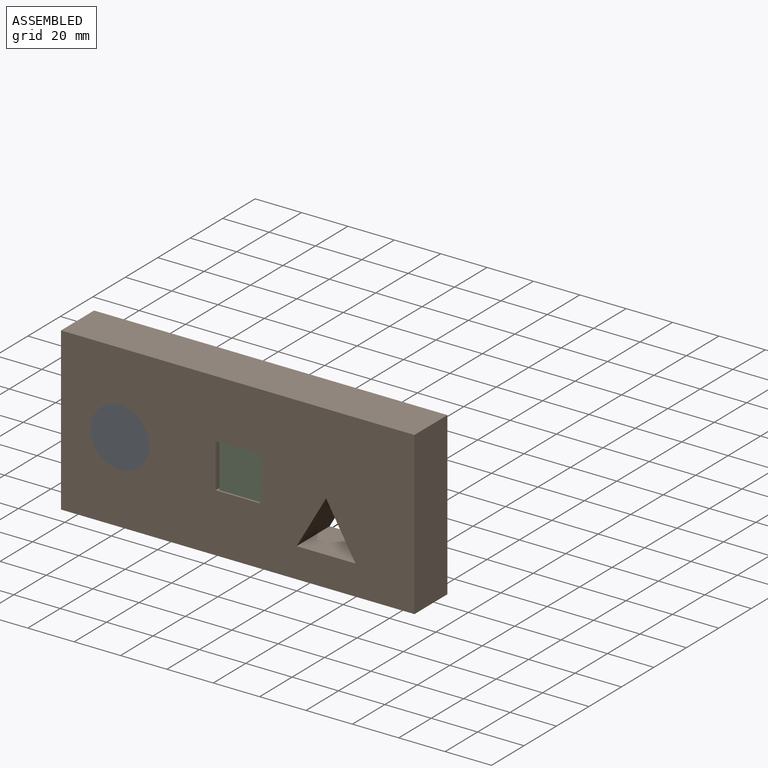
[diagram: assembled view]
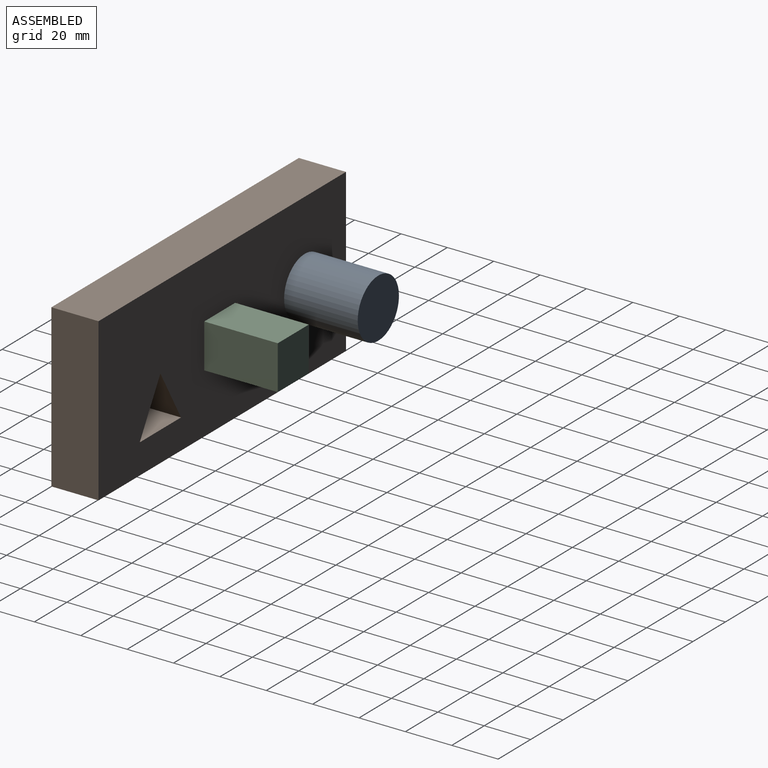
[diagram: assembled view, second angle]
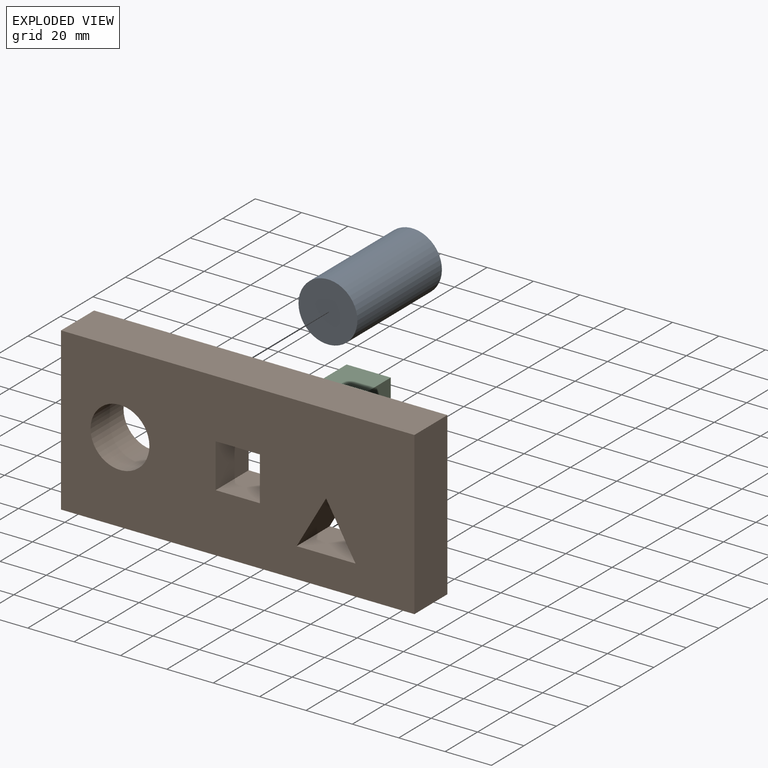
[diagram: exploded view]
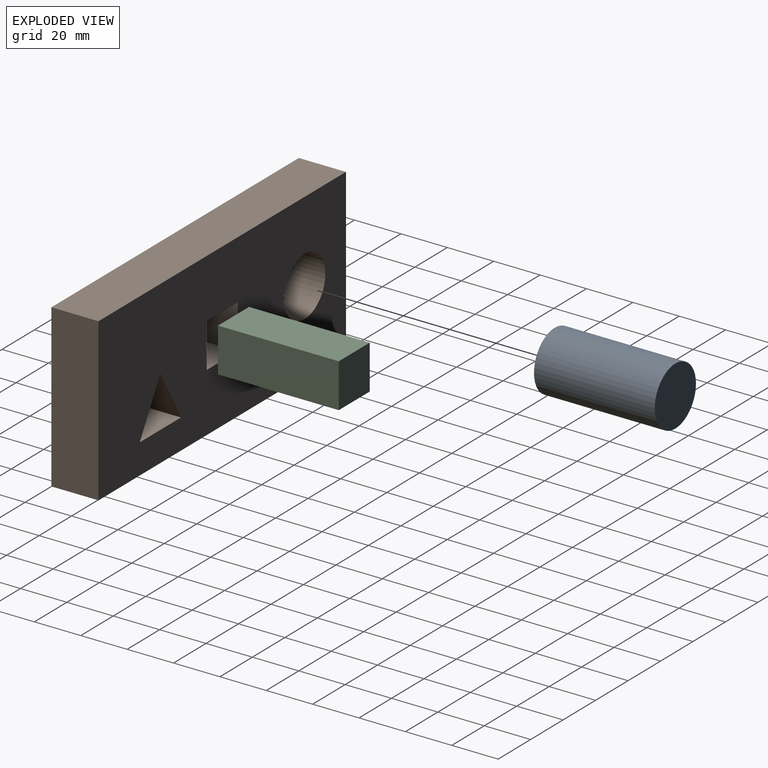
[diagram: exploded view, second angle]
ASSEMBLY  parts=3 mates=2
PART A: 3 faces, bbox 25.4x25.4x52.1 mm
  f0: cylinder r=12.7mm len=52.07mm, axis (0,0,-1), area 4155mm2, adj f1,f2
  f1: plane 25.4x25.4mm, normal (0,0,1), area 506.7mm2, adj f0
  f2: plane 25.4x25.4mm, normal (0,0,-1), area 506.7mm2, adj f0
PART B: 14 faces, bbox 152.4x20.3x69.8 mm
  f0: plane 20.32x19.05mm, normal (-1,0,0), area 387.1mm2, adj f1,f11,f12,f13
  f1: plane 20.32x19.05mm, normal (0,0,1), area 387.1mm2, adj f0,f2,f12,f13
  f2: plane 20.32x19.05mm, normal (1,0,0), area 387.1mm2, adj f1,f11,f12,f13
  f3: plane 22x20.32mm, normal (-0.87,0,-0.5), area 516.1mm2, adj f4,f8,f12,f13
  f4: plane 25.4x20.32mm, normal (0,0,1), area 516.1mm2, adj f3,f8,f12,f13
  f5: plane 152.4x20.32mm, normal (0,0,-1), area 3096.8mm2, adj f6,f9,f12,f13
  f6: plane 69.83x20.32mm, normal (1,0,0), area 1419mm2, adj f5,f7,f12,f13
  f7: plane 152.4x20.32mm, normal (0,0,1), area 3096.8mm2, adj f6,f9,f12,f13
  f8: plane 22x20.32mm, normal (0.87,0,-0.5), area 516.1mm2, adj f3,f4,f12,f13
  f9: plane 69.83x20.32mm, normal (-1,0,0), area 1419mm2, adj f5,f7,f12,f13
  f10: cylinder r=12.7mm len=25.4mm, axis (0,1,0), area 1621.5mm2, adj f12,f13
  f11: plane 20.32x19.05mm, normal (0,0,-1), area 387.1mm2, adj f0,f2,f12,f13
  f12: plane 152.4x69.83mm, normal (0,-1,0), area 9493.2mm2, adj f0,f1,f2,f3,f4,f5,f6,f7
  f13: plane 152.4x69.83mm, normal (0,1,0), area 9493.2mm2, adj f0,f1,f2,f3,f4,f5,f6,f7
PART C: 6 faces, bbox 19.1x19.1x52.1 mm
  f0: plane 52.07x19.05mm, normal (0,-1,0), area 991.9mm2, adj f1,f3,f4,f5
  f1: plane 52.07x19.05mm, normal (1,0,0), area 991.9mm2, adj f0,f2,f4,f5
  f2: plane 52.07x19.05mm, normal (0,1,0), area 991.9mm2, adj f1,f3,f4,f5
  f3: plane 52.07x19.05mm, normal (-1,0,0), area 991.9mm2, adj f0,f2,f4,f5
  f4: plane 19.05x19.05mm, normal (0,0,1), area 362.9mm2, adj f0,f1,f2,f3
  f5: plane 19.05x19.05mm, normal (0,0,-1), area 362.9mm2, adj f0,f1,f2,f3
PLACE A rot(axis=(1,0,0),90deg) t=(-15.98,15.33,23.48)mm
PLACE B t=(-15.98,-16.42,23.48)mm
PLACE C rot(axis=(-1,0,0),90deg) t=(-14.39,-36.74,23.92)mm
MATE fastened C.f5 <-> B.f12  axis (0,-1,0) through (-46.14,-36.74,23.92)mm
MATE fastened A.f0 <-> B.f10  axis (0,-1,0) through (-98.53,-36.74,23.48)mm
